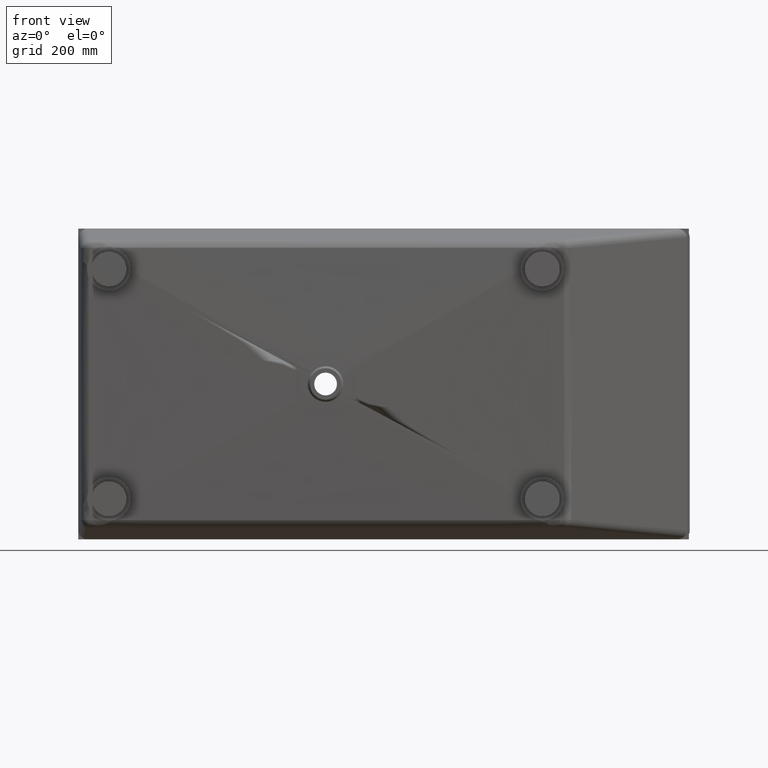
[diagram: clean part render]
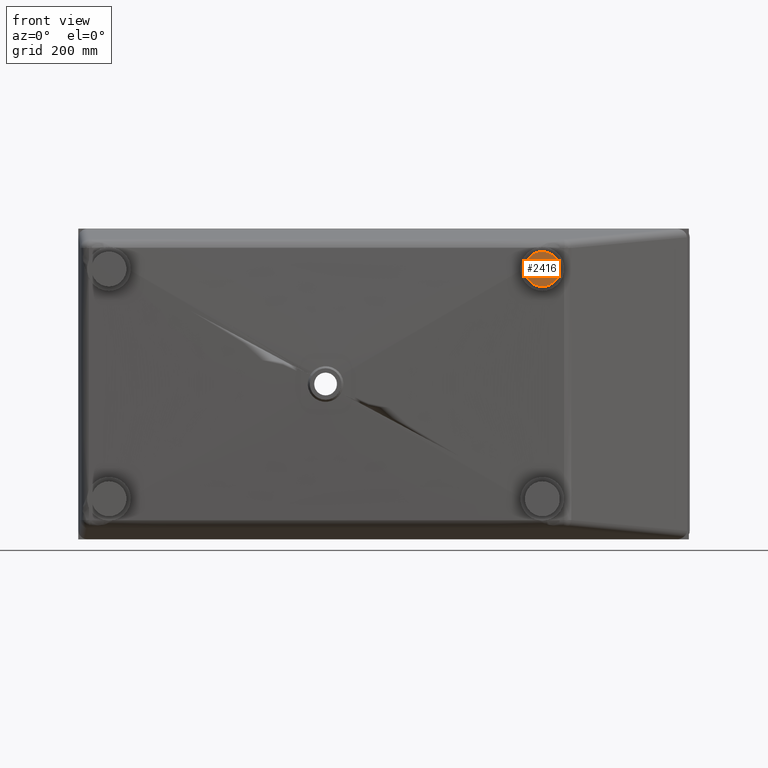
[diagram: same view with one face highlighted and labeled with its STEP entity id]
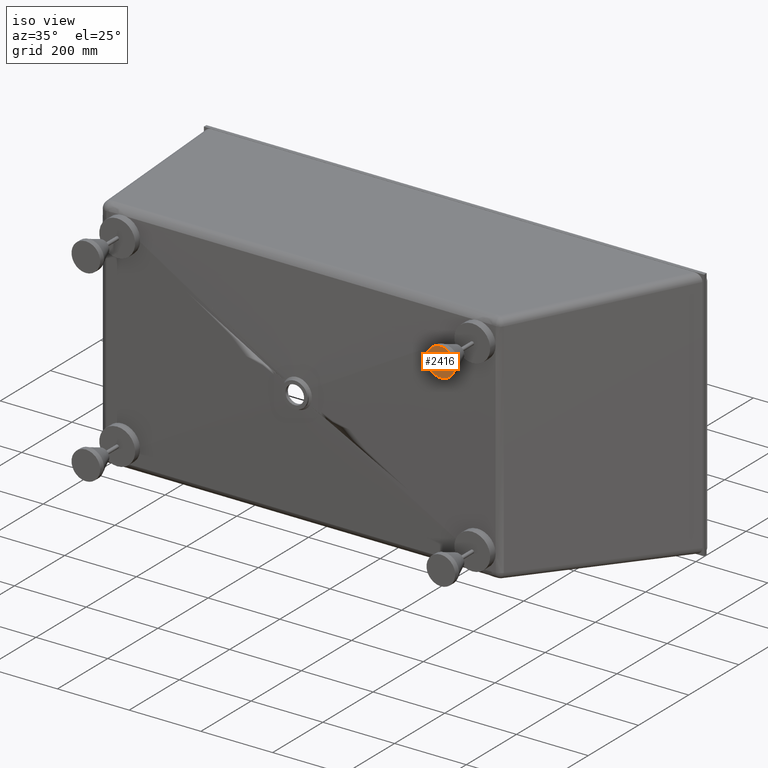
[diagram: same view with one face highlighted and labeled with its STEP entity id]
A machine part, front view. The second image highlights one B-rep face of the part: STEP entity #2416.
A second angle (iso view) of the same face is appended — the face is thin or edge-on in the first view.
In plain terms, the highlighted planar face has unit normal (0, -1, 0).
Its self-contained STEP definition (entity closure, byte-faithful):
#1641 = VERTEX_POINT ( 'NONE', #6091 ) ;
#2416 = ADVANCED_FACE ( 'NONE', ( #3755 ), #4903, .T. ) ;
#2483 = AXIS2_PLACEMENT_3D ( 'NONE', #4939, #4700, #4655 ) ;
#2685 = AXIS2_PLACEMENT_3D ( 'NONE', #9765, #9746, #9722 ) ;
#3317 = ORIENTED_EDGE ( 'NONE', *, *, #5650, .T. ) ;
#3755 = FACE_OUTER_BOUND ( 'NONE', #8031, .T. ) ;
#4152 = CARTESIAN_POINT ( 'NONE',  ( 495.0000000000000000, -580.0000000000001100, 222.4999999999998600 ) ) ;
#4655 = DIRECTION ( 'NONE',  ( 0.0000000000000000000, -0.0000000000000000000, -1.000000000000000000 ) ) ;
#4700 = DIRECTION ( 'NONE',  ( 0.0000000000000000000, -1.000000000000000000, 0.0000000000000000000 ) ) ;
#4903 = PLANE ( 'NONE',  #2483 ) ;
#4939 = CARTESIAN_POINT ( 'NONE',  ( 495.0000000000000000, -580.0000000000001100, 262.4999999999998900 ) ) ;
#5254 = VERTEX_POINT ( 'NONE', #4152 ) ;
#5650 = EDGE_CURVE ( 'NONE', #1641, #5254, #5843, .T. ) ;
#5830 = CIRCLE ( 'NONE', #9902, 40.00000000000003600 ) ;
#5843 = CIRCLE ( 'NONE', #2685, 40.00000000000003600 ) ;
#6091 = CARTESIAN_POINT ( 'NONE',  ( 495.0000000000000000, -580.0000000000001100, 302.4999999999999400 ) ) ;
#7410 = ORIENTED_EDGE ( 'NONE', *, *, #7748, .T. ) ;
#7748 = EDGE_CURVE ( 'NONE', #5254, #1641, #5830, .T. ) ;
#7762 = DIRECTION ( 'NONE',  ( 0.0000000000000000000, 0.0000000000000000000, -1.000000000000000000 ) ) ;
#7836 = DIRECTION ( 'NONE',  ( 0.0000000000000000000, -1.000000000000000000, 0.0000000000000000000 ) ) ;
#7926 = CARTESIAN_POINT ( 'NONE',  ( 495.0000000000000000, -580.0000000000001100, 262.4999999999998900 ) ) ;
#8031 = EDGE_LOOP ( 'NONE', ( #3317, #7410 ) ) ;
#9722 = DIRECTION ( 'NONE',  ( 0.0000000000000000000, 0.0000000000000000000, -1.000000000000000000 ) ) ;
#9746 = DIRECTION ( 'NONE',  ( 0.0000000000000000000, -1.000000000000000000, 0.0000000000000000000 ) ) ;
#9765 = CARTESIAN_POINT ( 'NONE',  ( 495.0000000000000000, -580.0000000000001100, 262.4999999999998900 ) ) ;
#9902 = AXIS2_PLACEMENT_3D ( 'NONE', #7926, #7836, #7762 ) ;